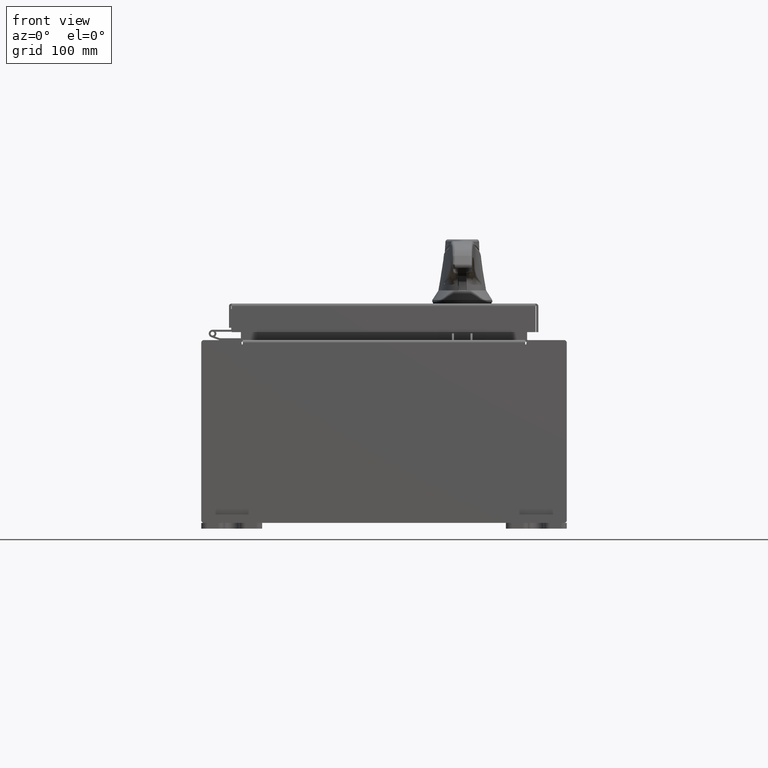
[diagram: clean part render]
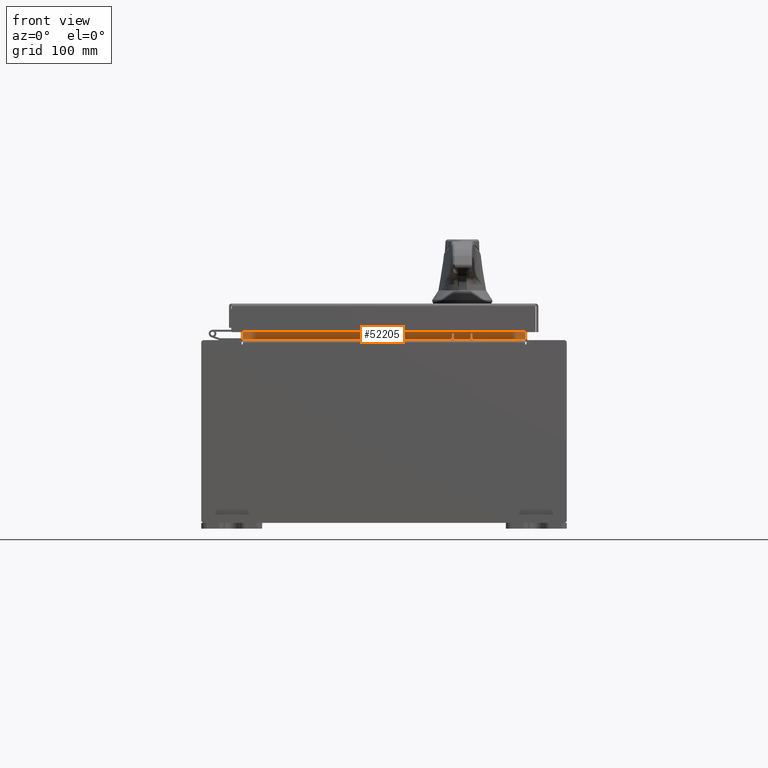
[diagram: same view with one face highlighted and labeled with its STEP entity id]
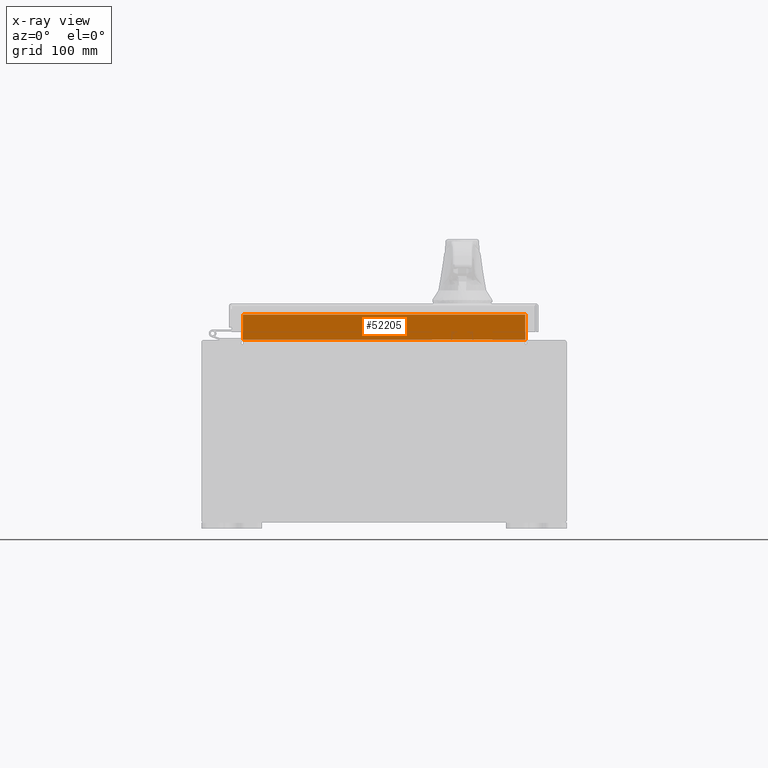
[diagram: x-ray of the same camera — body ghosted, the highlighted face saturated]
A machine part, front view. The second image highlights one B-rep face of the part: STEP entity #52205.
The next image is the same camera in x-ray: the body ghosted, the highlighted face saturated — about 0% of this face is hidden behind the body in this view.
In plain terms, the highlighted planar face has unit normal (0, -1, 0).
Its self-contained STEP definition (entity closure, byte-faithful):
#2415 = EDGE_LOOP ( 'NONE', ( #23955, #37799, #90071, #22553 ) ) ;
#8410 = DIRECTION ( 'NONE',  ( 0.0000000000000000000, 1.000000000000000000, 0.0000000000000000000 ) ) ;
#11962 = CARTESIAN_POINT ( 'NONE',  ( 4.637200000000001800, -1.300299999999999800, 3.013000000000004300 ) ) ;
#14920 = EDGE_CURVE ( 'NONE', #77423, #103311, #38301, .T. ) ;
#17341 = DIRECTION ( 'NONE',  ( -0.0000000000000000000, -0.0000000000000000000, 1.000000000000000000 ) ) ;
#17901 = EDGE_CURVE ( 'NONE', #50473, #77423, #57369, .T. ) ;
#22553 = ORIENTED_EDGE ( 'NONE', *, *, #100518, .F. ) ;
#23955 = ORIENTED_EDGE ( 'NONE', *, *, #49286, .F. ) ;
#32772 = VECTOR ( 'NONE', #17341, 39.37007874015748100 ) ;
#37799 = ORIENTED_EDGE ( 'NONE', *, *, #14920, .F. ) ;
#38301 = LINE ( 'NONE', #69204, #99147 ) ;
#40413 = CARTESIAN_POINT ( 'NONE',  ( -4.637199999999999100, -1.300299999999999800, 3.837600000000004600 ) ) ;
#49286 = EDGE_CURVE ( 'NONE', #103311, #106236, #80422, .T. ) ;
#49654 = PLANE ( 'NONE',  #86116 ) ;
#50473 = VERTEX_POINT ( 'NONE', #11962 ) ;
#52205 = ADVANCED_FACE ( 'NONE', ( #90464 ), #49654, .T. ) ;
#57369 = LINE ( 'NONE', #99835, #32772 ) ;
#57985 = CARTESIAN_POINT ( 'NONE',  ( 0.0000000000000000000, -1.300299999999999800, 0.0000000000000000000 ) ) ;
#66305 = DIRECTION ( 'NONE',  ( 0.0000000000000000000, -0.0000000000000000000, 1.000000000000000000 ) ) ;
#69204 = CARTESIAN_POINT ( 'NONE',  ( 4.637200000000001800, -1.300299999999999800, 3.837600000000004600 ) ) ;
#69880 = CARTESIAN_POINT ( 'NONE',  ( 4.637200000000001800, -1.300299999999999800, 3.837600000000004600 ) ) ;
#74772 = CARTESIAN_POINT ( 'NONE',  ( -4.637199999999999100, -1.300299999999999800, 3.000000000000004400 ) ) ;
#75330 = VECTOR ( 'NONE', #82030, 39.37007874015748100 ) ;
#77423 = VERTEX_POINT ( 'NONE', #69880 ) ;
#77888 = DIRECTION ( 'NONE',  ( -1.000000000000000000, -0.0000000000000000000, -0.0000000000000000000 ) ) ;
#80422 = LINE ( 'NONE', #74772, #99807 ) ;
#80579 = LINE ( 'NONE', #101894, #75330 ) ;
#82030 = DIRECTION ( 'NONE',  ( 1.000000000000000000, 0.0000000000000000000, 0.0000000000000000000 ) ) ;
#83112 = DIRECTION ( 'NONE',  ( -0.0000000000000000000, -0.0000000000000000000, -1.000000000000000000 ) ) ;
#86116 = AXIS2_PLACEMENT_3D ( 'NONE', #57985, #8410, #66305 ) ;
#88944 = CARTESIAN_POINT ( 'NONE',  ( -4.637199999999999100, -1.300299999999999800, 3.013000000000004300 ) ) ;
#90071 = ORIENTED_EDGE ( 'NONE', *, *, #17901, .F. ) ;
#90464 = FACE_OUTER_BOUND ( 'NONE', #2415, .T. ) ;
#99147 = VECTOR ( 'NONE', #77888, 39.37007874015748100 ) ;
#99807 = VECTOR ( 'NONE', #83112, 39.37007874015748100 ) ;
#99835 = CARTESIAN_POINT ( 'NONE',  ( 4.637200000000001800, -1.300299999999999800, 3.925300000000004900 ) ) ;
#100518 = EDGE_CURVE ( 'NONE', #106236, #50473, #80579, .T. ) ;
#101894 = CARTESIAN_POINT ( 'NONE',  ( -4.637199999999999100, -1.300299999999999800, 3.013000000000004300 ) ) ;
#103311 = VERTEX_POINT ( 'NONE', #40413 ) ;
#106236 = VERTEX_POINT ( 'NONE', #88944 ) ;